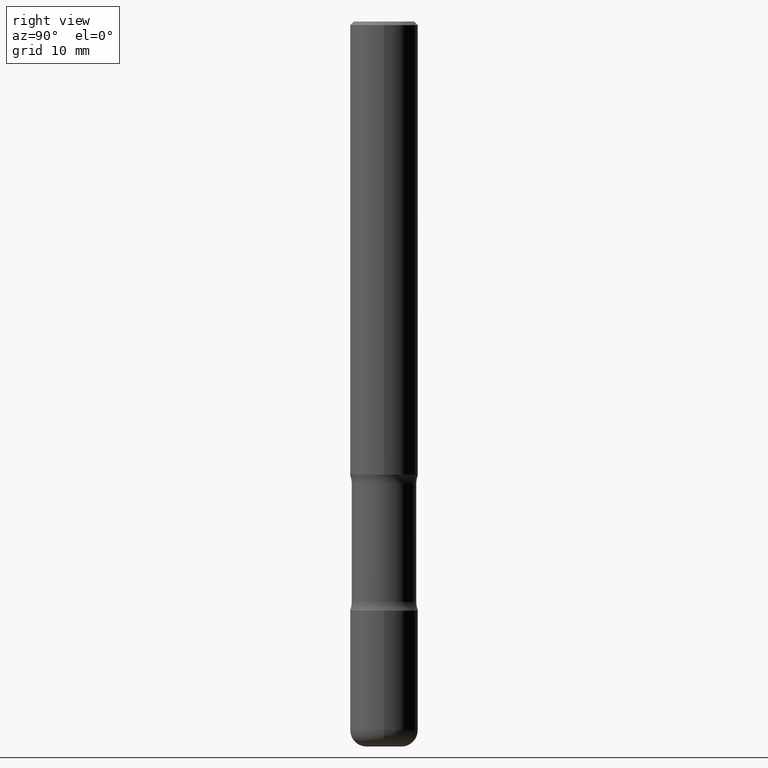
[diagram: clean part render]
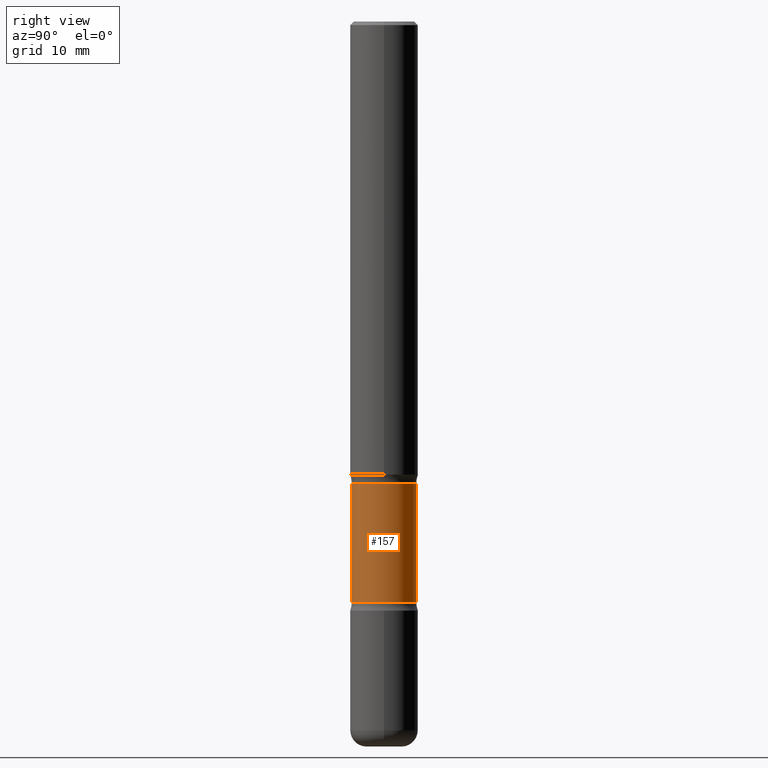
[diagram: same view with one face highlighted and labeled with its STEP entity id]
A machine part, right view. The second image highlights one B-rep face of the part: STEP entity #157.
In plain terms, the highlighted cylindrical surface (edge-blend (fillet) strip) has radius 4.5244 mm, axis along (0, -0, -1).
Its self-contained STEP definition (entity closure, byte-faithful):
#7 = VECTOR ( 'NONE', #84, 39.37007874015748143 ) ;
#9 = CYLINDRICAL_SURFACE ( 'NONE', #407, 0.1781249999999999500 ) ;
#21 = ORIENTED_EDGE ( 'NONE', *, *, #416, .F. ) ;
#23 = VERTEX_POINT ( 'NONE', #447 ) ;
#29 = CARTESIAN_POINT ( 'NONE',  ( 1.243840226962927197E-15, 0.1781249999999909572, -2.547495887979909224 ) ) ;
#39 = LINE ( 'NONE', #271, #95 ) ;
#55 = DIRECTION ( 'NONE',  ( 6.982962677686266711E-15, 1.000000000000000000, -3.067338098149349089E-15 ) ) ;
#68 = VERTEX_POINT ( 'NONE', #440 ) ;
#71 = VERTEX_POINT ( 'NONE', #427 ) ;
#79 = EDGE_CURVE ( 'NONE', #71, #23, #39, .T. ) ;
#84 = DIRECTION ( 'NONE',  ( 2.558681667686983511E-29, -3.329354077496592524E-15, -1.000000000000000000 ) ) ;
#95 = VECTOR ( 'NONE', #180, 39.37007874015748143 ) ;
#103 = ORIENTED_EDGE ( 'NONE', *, *, #139, .T. ) ;
#106 = AXIS2_PLACEMENT_3D ( 'NONE', #170, #172, #508 ) ;
#136 = DIRECTION ( 'NONE',  ( 6.982962677686266711E-15, 1.000000000000000000, -3.067338098149349089E-15 ) ) ;
#139 = EDGE_CURVE ( 'NONE', #182, #71, #257, .T. ) ;
#141 = CARTESIAN_POINT ( 'NONE',  ( 6.150289227201164007E-29, -9.008429421428009851E-15, -2.547495887979908780 ) ) ;
#157 = ADVANCED_FACE ( 'NONE', ( #279 ), #9, .T. ) ;
#170 = CARTESIAN_POINT ( 'NONE',  ( 7.826246762236988201E-29, -1.118918372292999451E-14, -3.202504112020091664 ) ) ;
#172 = DIRECTION ( 'NONE',  ( 2.558681667686983511E-29, -3.329354077496592524E-15, -1.000000000000000000 ) ) ;
#180 = DIRECTION ( 'NONE',  ( 2.558681667686983511E-29, -3.329354077496592524E-15, -1.000000000000000000 ) ) ;
#182 = VERTEX_POINT ( 'NONE', #29 ) ;
#185 = ORIENTED_EDGE ( 'NONE', *, *, #401, .F. ) ;
#237 = DIRECTION ( 'NONE',  ( 2.558681667686983511E-29, -3.329354077496592524E-15, -1.000000000000000000 ) ) ;
#256 = EDGE_LOOP ( 'NONE', ( #103, #368, #185, #21 ) ) ;
#257 = CIRCLE ( 'NONE', #321, 0.1781249999999999500 ) ;
#271 = CARTESIAN_POINT ( 'NONE',  ( -1.222026205852954821E-15, -0.1781250000000138001, -3.999999999999999556 ) ) ;
#279 = FACE_OUTER_BOUND ( 'NONE', #256, .T. ) ;
#298 = LINE ( 'NONE', #305, #7 ) ;
#305 = CARTESIAN_POINT ( 'NONE',  ( 1.243840226962964471E-15, 0.1781249999999861278, -4.000000000000000888 ) ) ;
#321 = AXIS2_PLACEMENT_3D ( 'NONE', #141, #489, #136 ) ;
#350 = CIRCLE ( 'NONE', #106, 0.1781249999999999223 ) ;
#368 = ORIENTED_EDGE ( 'NONE', *, *, #79, .T. ) ;
#401 = EDGE_CURVE ( 'NONE', #68, #23, #350, .T. ) ;
#403 = CARTESIAN_POINT ( 'NONE',  ( 9.866784870866931853E-29, -1.384432990936266734E-14, -4.000000000000000000 ) ) ;
#407 = AXIS2_PLACEMENT_3D ( 'NONE', #403, #237, #55 ) ;
#416 = EDGE_CURVE ( 'NONE', #182, #68, #298, .T. ) ;
#427 = CARTESIAN_POINT ( 'NONE',  ( -1.254184790217547253E-15, -0.1781250000000089706, -2.547495887979908336 ) ) ;
#440 = CARTESIAN_POINT ( 'NONE',  ( 1.243840226962943961E-15, 0.1781249999999887368, -3.202504112020092553 ) ) ;
#447 = CARTESIAN_POINT ( 'NONE',  ( -1.254184790217529307E-15, -0.1781250000000111355, -3.202504112020091220 ) ) ;
#489 = DIRECTION ( 'NONE',  ( 2.558681667686983511E-29, -3.329354077496592524E-15, -1.000000000000000000 ) ) ;
#508 = DIRECTION ( 'NONE',  ( 6.982962677686265133E-15, 1.000000000000000000, -3.067338098149349483E-15 ) ) ;